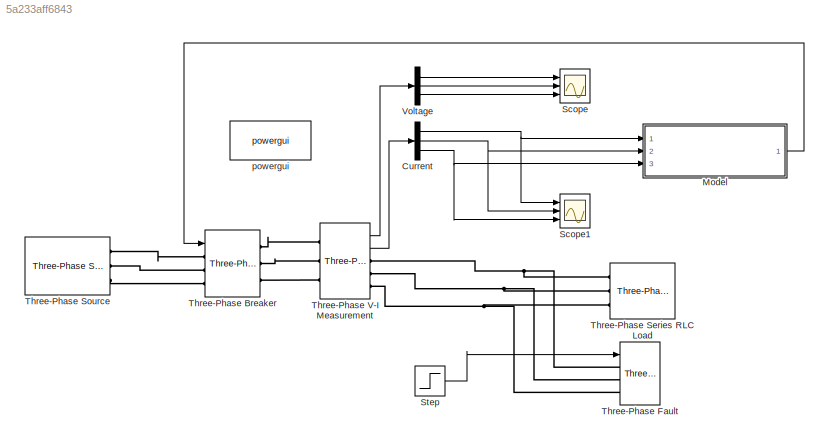
MODEL slx_5a233aff6843
KIND model
CONFIG AbsTol = auto
CONFIG EnableMultiTasking = off
CONFIG FixedStep = auto
CONFIG MaxStep = auto
CONFIG MinStep = auto
CONFIG RelTol = 1e-3
CONFIG SampleTimeConstraint = Unconstrained
CONFIG SolverName = VariableStepAuto
CONFIG StartTime = 0.0
CONFIG StopTime = 0.15
BLOCK [Demux] Current
  Outputs = 3
  Ports = [1, 3]
BLOCK [ModelReference] Model
  ModelNameDialog = Relay.slx
  ModelReferenceVersion = 1.9
  Ports = [3, 1]
BLOCK [Scope] Scope
  Floating = off
  NumInputPorts = 3
  Ports = [3]
  ScopeSpecificationString = Simulink.scopes.TimeScopeBlockCfg('CurrentConfiguration', extmgr.ConfigurationSet(extmgr.Configuration('Core','General UI',true),extmgr.Configuration('Core','Source UI',true),extmgr.Configuration('Sources','WiredSimulink',true),extmgr.Configuration('Visuals','Time Domain',true,'SerializedDisplays',{struct('MinYLimReal','-17180.46055','MaxYLimReal','17180.46056','YLabelReal','','MinYLimMag','22.837...<+1512ch>
BLOCK [Scope] Scope1
  Floating = off
  NumInputPorts = 3
  Ports = [3]
  ScopeSpecificationString = Simulink.scopes.TimeScopeBlockCfg('CurrentConfiguration', extmgr.ConfigurationSet(extmgr.Configuration('Core','General UI',true),extmgr.Configuration('Core','Source UI',true),extmgr.Configuration('Sources','WiredSimulink',true,'DataLoggingVariableName','ScopeData1'),extmgr.Configuration('Visuals','Time Domain',true,'SerializedDisplays',{struct('MinYLimReal','-33246.04277','MaxYLimReal','69999.1200...<+1554ch>
BLOCK [Step] Step
  OutDataTypeStr = Inherit: Inherit via back propagation
  SampleTime = 0
  Time = 0.1
BLOCK [Reference] Three-Phase Breaker  REF=powerlib/Elements/Three-Phase Breaker
  Ports = [1, 0, 0, 0, 0, 3, 3]
  SourceBlock = powerlib/Elements/Three-Phase Breaker
  SourceProductBaseCode = PS
  SourceType = Three-Phase Breaker
BLOCK [Reference] Three-Phase Fault  REF=powerlib/Elements/Three-Phase Fault
  Ports = [1, 0, 0, 0, 0, 3]
  SourceBlock = powerlib/Elements/Three-Phase Fault
  SourceProductBaseCode = PS
  SourceType = Three-Phase Fault
BLOCK [Reference] Three-Phase Series RLC Load  REF=powerlib/Elements/Three-Phase
Series RLC Load
  AttributesFormatString = \n
  NameLocation = top
  Ports = [0, 0, 0, 0, 0, 3]
  SourceBlock = powerlib/Elements/Three-Phase\nSeries RLC Load
  SourceProductBaseCode = PS
  SourceType = Three-Phase Series RLC Load
BLOCK [Reference] Three-Phase Source  REF=powerlib/Electrical
Sources/Three-Phase Source
  Ports = [0, 0, 0, 0, 0, 0, 3]
  SourceBlock = powerlib/Electrical\nSources/Three-Phase Source
  SourceProductBaseCode = PS
  SourceType = Three-Phase Source
BLOCK [Reference] Three-Phase V-I Measurement  REF=powerlib/Measurements/Three-Phase
V-I Measurement
  Ports = [0, 2, 0, 0, 0, 3, 3]
  SourceBlock = powerlib/Measurements/Three-Phase\nV-I Measurement
  SourceProductBaseCode = PS
  SourceType = Three-Phase VI Measurement
BLOCK [Demux] Voltage
  Outputs = 3
  Ports = [1, 3]
BLOCK [Reference] powergui  REF=powerlib/powergui
  Ports = []
  Priority = 1
  SourceBlock = powerlib/powergui
  SourceProductBaseCode = PS
  SourceType = PSB option menu block
NET Current:1 -> Model:1, Scope1:1
NET Current:2 -> Model:2, Scope1:2
NET Current:3 -> Model:3, Scope1:3
LINE Model:1 -> Three-Phase Breaker:1
LINE Step:1 -> Three-Phase Fault:1
LINE Three-Phase V-I Measurement:1 -> Voltage:1
LINE Three-Phase V-I Measurement:2 -> Current:1
LINE Voltage:1 -> Scope:1
LINE Voltage:2 -> Scope:2
LINE Voltage:3 -> Scope:3
PLINE Three-Phase Breaker:LConn1 -- Three-Phase Source:RConn1
PLINE Three-Phase Breaker:LConn2 -- Three-Phase Source:RConn2
PLINE Three-Phase Breaker:LConn3 -- Three-Phase Source:RConn3
PLINE Three-Phase Breaker:RConn1 -- Three-Phase V-I Measurement:LConn1
PLINE Three-Phase Breaker:RConn2 -- Three-Phase V-I Measurement:LConn2
PLINE Three-Phase Breaker:RConn3 -- Three-Phase V-I Measurement:LConn3
PNET net1: Three-Phase Fault:LConn1 -- Three-Phase Series RLC Load:LConn1 -- Three-Phase V-I Measurement:RConn1
PNET net2: Three-Phase Fault:LConn2 -- Three-Phase Series RLC Load:LConn2 -- Three-Phase V-I Measurement:RConn2
PNET net3: Three-Phase Fault:LConn3 -- Three-Phase Series RLC Load:LConn3 -- Three-Phase V-I Measurement:RConn3
note: NET lines group one-source signal fan-out (src -> all destinations, sorted); 1:1 wires keep LINE; PNET lines group multi-terminal physical nets as a canonical sorted terminal list (undirected conserving connections); 2-terminal nets keep the pairwise PLINE form
